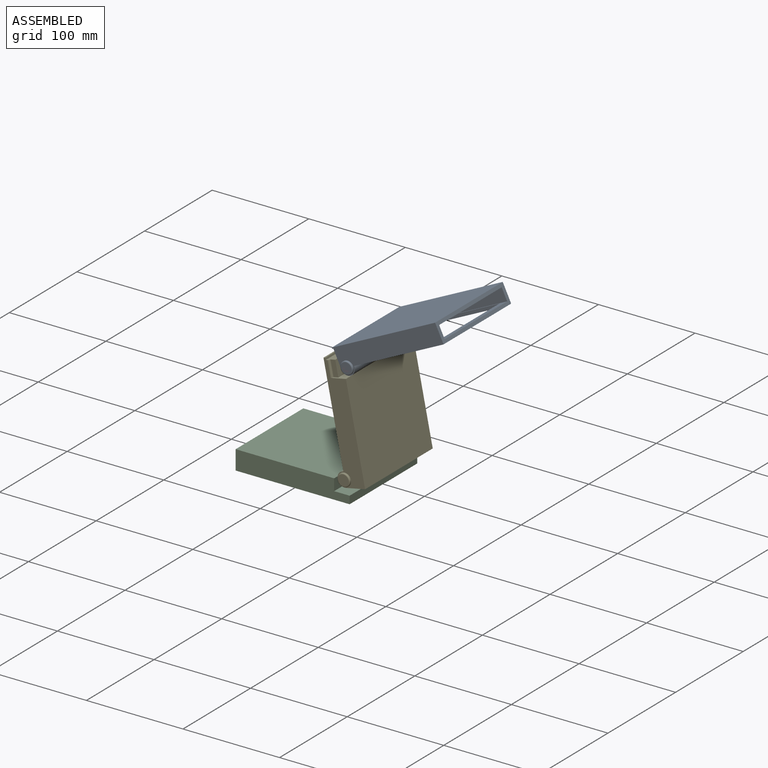
[diagram: assembled view]
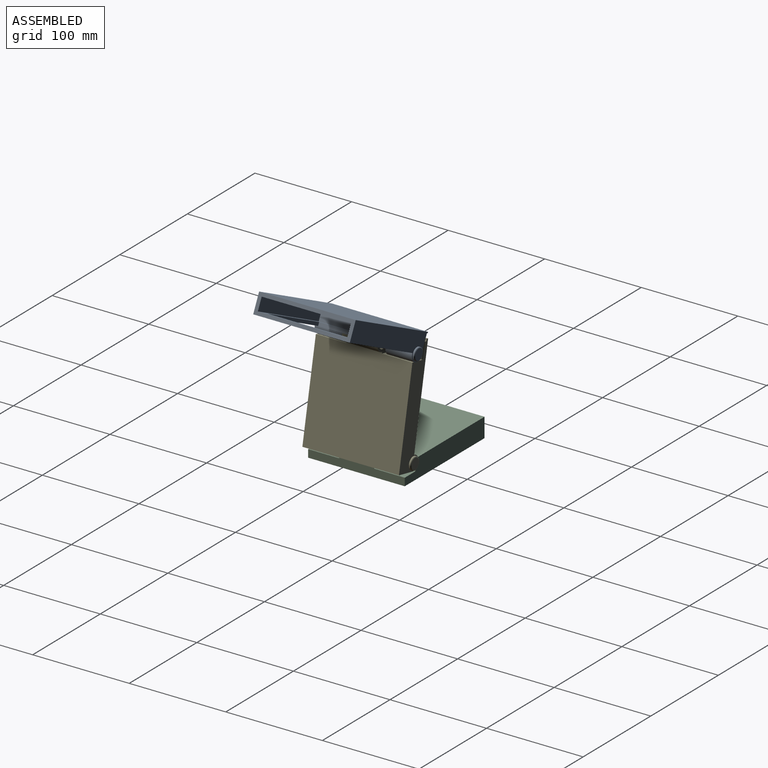
[diagram: assembled view, second angle]
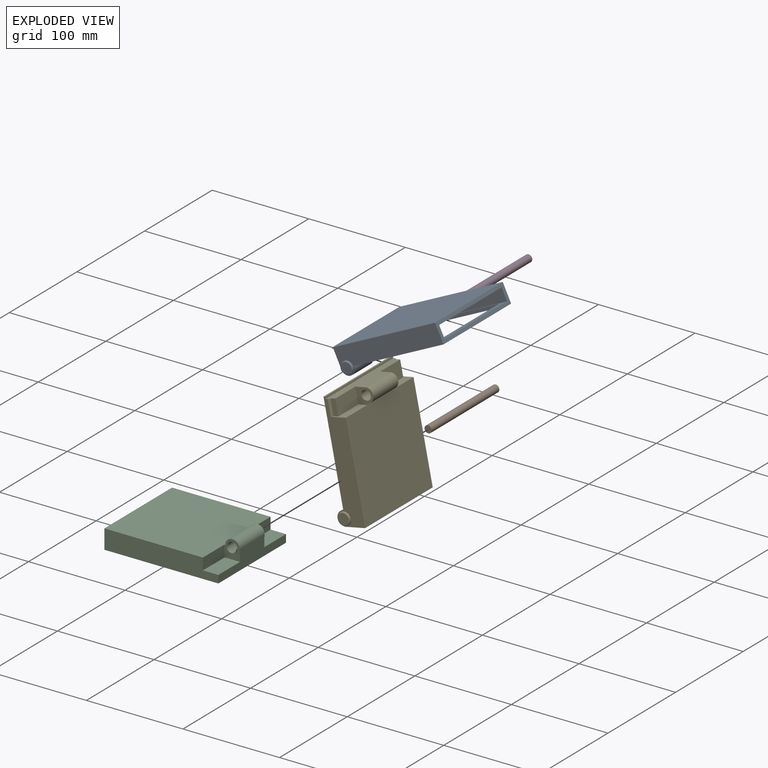
[diagram: exploded view]
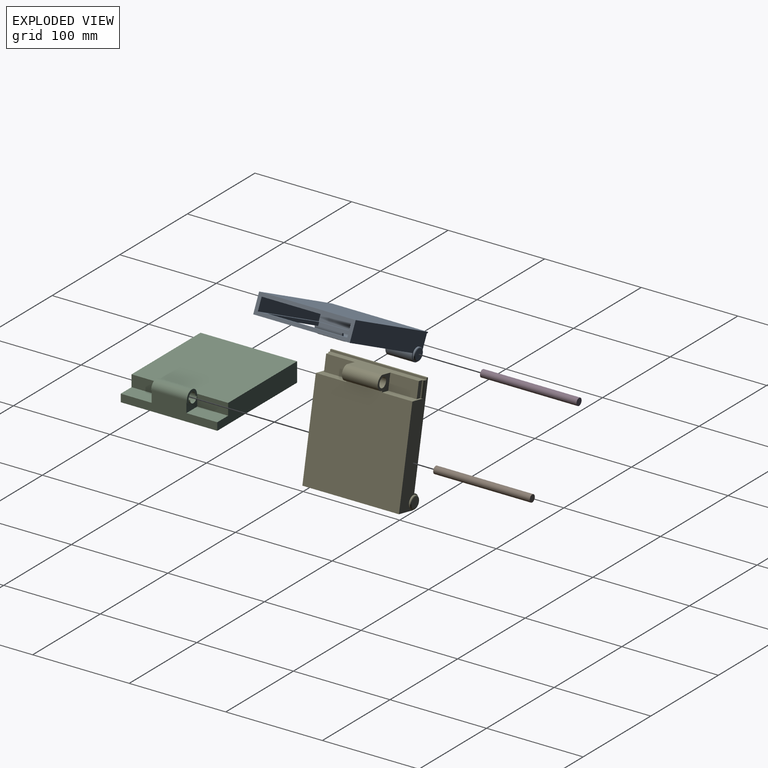
[diagram: exploded view, second angle]
ASSEMBLY  parts=5 mates=4
PART A: 37 faces, bbox 119x104x27.5 mm
  f0: cylinder r=7.5mm len=27.5mm, axis (0,1,0), area 589.4mm2, adj f5,f9,f13,f34
  f1: cylinder r=7.5mm len=14.7mm, axis (0,1,0), area 32.2mm2, adj f5,f7,f9,f34
  f2: cylinder r=7.5mm len=27.5mm, axis (0,1,0), area 589.4mm2, adj f6,f9,f14,f34
  f3: plane 42x15.7mm, normal (0,0,-1), area 659.4mm2, adj f7,f8,f15,f34
  f4: cylinder r=7.5mm len=14.7mm, axis (0,1,0), area 32.2mm2, adj f6,f8,f9,f34
  f5: plane 15x14.7mm, normal (0,1,0), area 97.3mm2, adj f0,f1,f23,f34
  f6: plane 15x14.7mm, normal (0,-1,0), area 97.3mm2, adj f2,f4,f25,f34
  f7: plane 15.7x15mm, normal (0,1,0), area 147.6mm2, adj f1,f3,f9,f15,f34
  f8: plane 15.7x15mm, normal (0,-1,0), area 147.6mm2, adj f3,f4,f9,f15,f34
  f9: plane 103x100mm, normal (0,0,-1), area 2776mm2, adj f0,f1,f2,f4,f7,f8,f11,f13
  f10: plane 100x92.5mm, normal (0,0,1), area 1768mm2, adj f11,f27,f28,f29,f30,f31,f32,f33
  f11: plane 100x20mm, normal (1,0,0), area 797.5mm2, adj f9,f10,f12,f13,f14,f26,f27,f28
  f12: plane 119x100mm, normal (0,0,1), area 11900mm2, adj f11,f13,f14,f36
  f13: plane 119x27.5mm, normal (0,-1,0), area 2310.7mm2, adj f0,f9,f11,f12,f18,f34,f35,f36
  f14: plane 119x27.5mm, normal (0,1,0), area 2310.7mm2, adj f2,f9,f11,f12,f17,f34,f35,f36
  f15: plane 42x15mm, normal (-1,0,0), area 630mm2, adj f3,f7,f8,f9
  f16: plane 11x11mm, normal (0,1,0), area 95mm2, adj f21
  f17: cylinder r=6.5mm len=13mm, axis (0,-1,0), area 40.8mm2, adj f14,f21
  f18: cylinder r=6.5mm len=13mm, axis (0,1,0), area 40.8mm2, adj f13,f20
  f19: plane 11x11mm, normal (0,-1,0), area 95mm2, adj f20
  f20: torus R=5.5mm, axis (0,-1,0), area 60.6mm2, adj f18,f19
  f21: torus R=5.5mm, axis (0,1,0), area 60.6mm2, adj f16,f17
  f22: plane 10x10mm, normal (0,1,0), area 78.5mm2, adj f23
  f23: cylinder r=5mm len=25.5mm, axis (0,1,0), area 801.1mm2, adj f5,f22
  f24: plane 10x10mm, normal (0,-1,0), area 78.5mm2, adj f25
  f25: cylinder r=5mm len=25.5mm, axis (0,1,0), area 801.1mm2, adj f6,f24
  f26: plane 100x92.5mm, normal (0,0,-1), area 9250mm2, adj f11,f27,f28,f29
  f27: plane 100x13mm, normal (0,1,0), area 1300mm2, adj f10,f11,f26,f29
  f28: plane 100x13mm, normal (0,-1,0), area 1300mm2, adj f10,f11,f26,f29
  f29: plane 92.5x13mm, normal (1,0,0), area 1202.5mm2, adj f10,f26,f27,f28
  f30: plane 86x3.47mm, normal (0,1,0), area 298.6mm2, adj f9,f10,f31,f33
  f31: plane 87x3.47mm, normal (1,0,0), area 302.1mm2, adj f9,f10,f30,f32
  f32: plane 86x3.47mm, normal (0,-1,0), area 298.6mm2, adj f9,f10,f31,f33
  f33: plane 87x3.47mm, normal (-1,0,0), area 302.1mm2, adj f9,f10,f30,f32
  f34: plane 100x20.94mm, normal (-1,0,0), area 1363mm2, adj f0,f1,f2,f3,f4,f5,f6,f7
  f35: plane 100x1.3mm, normal (0,0,-1), area 130mm2, adj f13,f14,f34,f36
  f36: plane 100x1.16mm, normal (-1,0,0), area 116.2mm2, adj f12,f13,f14,f35
PART B: 3 faces, bbox 7.5x100x7.5 mm
  f0: cylinder r=3.75mm len=100mm, axis (0,1,0), area 2356.2mm2, adj f1,f2
  f1: plane 7.5x7.5mm, normal (0,-1,0), area 44.2mm2, adj f0
  f2: plane 7.5x7.5mm, normal (0,1,0), area 44.2mm2, adj f0
PART C: 29 faces, bbox 118x100x27.5 mm
  f0: plane 118x100mm, normal (0,0,-1), area 11800mm2, adj f7,f10,f11,f28
  f1: plane 32x16mm, normal (0,0,1), area 512mm2, adj f5,f11,f12,f28
  f2: plane 32x16mm, normal (0,0,1), area 512mm2, adj f6,f10,f13,f28
  f3: plane 16x15.3mm, normal (0,-1,0), area 100mm2, adj f8,f9,f13,f14,f16,f21,f22,f28
  f4: plane 16x15.3mm, normal (0,1,0), area 100mm2, adj f8,f9,f12,f15,f16,f19,f20,f28
  f5: plane 16x11.7mm, normal (0,1,0), area 98.8mm2, adj f1,f12,f19,f20,f28
  f6: plane 16x11.7mm, normal (0,-1,0), area 98.8mm2, adj f2,f13,f21,f22,f28
  f7: plane 100x20mm, normal (-1,0,0), area 872mm2, adj f0,f8,f10,f11,f23,f24,f25,f26
  f8: plane 103x100mm, normal (0,0,1), area 10237mm2, adj f3,f4,f7,f9,f10,f11,f12,f13
  f9: cylinder r=7.5mm len=37mm, axis (0,-1,0), area 871.8mm2, adj f3,f4,f8,f28
  f10: plane 118x20mm, normal (0,-1,0), area 2168mm2, adj f0,f2,f7,f8,f13,f28
  f11: plane 118x20mm, normal (0,1,0), area 2168mm2, adj f0,f1,f7,f8,f12,f28
  f12: plane 32x12mm, normal (1,0,0), area 383.8mm2, adj f1,f4,f5,f8,f11,f19
  f13: plane 32x12mm, normal (1,0,0), area 383.9mm2, adj f2,f3,f6,f8,f10,f21
  f14: cylinder r=5mm len=10mm, axis (0,1,0), area 24mm2, adj f3,f16,f17
  f15: cylinder r=5mm len=10mm, axis (0,1,0), area 24mm2, adj f4,f16,f18
  f16: cylinder r=5mm len=40mm, axis (0,1,0), area 1208.6mm2, adj f3,f4,f14,f15,f17,f18
  f17: plane 10x5.15mm, normal (0,-1,0), area 3mm2, adj f14,f16
  f18: plane 10x5.15mm, normal (0,1,0), area 3mm2, adj f15,f16
  f19: plane 1x0.5mm, normal (0,0,-1), area 0.5mm2, adj f4,f5,f12,f20
  f20: cylinder r=7.5mm len=15mm, axis (0,1,0), area 11.8mm2, adj f4,f5,f19,f28
  f21: plane 1x0.5mm, normal (0,0,-1), area 0.5mm2, adj f3,f6,f13,f22
  f22: cylinder r=7.5mm len=15mm, axis (0,1,0), area 11.8mm2, adj f3,f6,f21,f28
  f23: plane 94x92.5mm, normal (0,0,-1), area 8695mm2, adj f7,f24,f26,f27
  f24: plane 92.5x12mm, normal (0,-1,0), area 1110mm2, adj f7,f23,f25,f27
  f25: plane 94x92.5mm, normal (0,0,1), area 8695mm2, adj f7,f24,f26,f27
  f26: plane 92.5x12mm, normal (0,1,0), area 1110mm2, adj f7,f23,f25,f27
  f27: plane 94x12mm, normal (-1,0,0), area 1128mm2, adj f23,f24,f25,f26
  f28: plane 100x20mm, normal (1,0,0), area 1232.3mm2, adj f0,f1,f2,f3,f4,f5,f6,f9
PART D: 3 faces, bbox 7.5x100x7.5 mm
  f0: cylinder r=3.75mm len=100mm, axis (0,1,0), area 2356.2mm2, adj f1,f2
  f1: plane 7.5x7.5mm, normal (0,-1,0), area 44.2mm2, adj f0
  f2: plane 7.5x7.5mm, normal (0,1,0), area 44.2mm2, adj f0
PART E: 41 faces, bbox 118x104x35.7 mm
  f0: plane 118x27.5mm, normal (0,-1,0), area 2015.7mm2, adj f2,f4,f13,f15,f18,f19,f22,f38
  f1: plane 118x27.5mm, normal (0,1,0), area 2015.7mm2, adj f2,f5,f12,f13,f14,f18,f21,f38
  f2: plane 101.33x100mm, normal (0,0,1), area 10043.9mm2, adj f0,f1,f3,f6,f7,f12,f19,f40
  f3: cylinder r=7.5mm len=37mm, axis (0,-1,0), area 819mm2, adj f2,f6,f7,f39
  f4: cylinder r=2mm len=16.09mm, axis (1,0,0), area 50.5mm2, adj f0,f8,f19,f39
  f5: cylinder r=2mm len=16.09mm, axis (-1,0,0), area 50.5mm2, adj f1,f10,f12,f39
  f6: plane 17.6x16.09mm, normal (0,1,0), area 170.9mm2, adj f2,f3,f11,f12,f32,f39
  f7: plane 17.6x16.09mm, normal (0,-1,0), area 170.9mm2, adj f2,f3,f9,f19,f32,f39
  f8: plane 16.09x5mm, normal (0,-1,0), area 80.4mm2, adj f4,f9,f19,f39
  f9: plane 29.5x16.09mm, normal (0,0,1), area 474.5mm2, adj f7,f8,f19,f39
  f10: plane 16.09x5mm, normal (0,1,0), area 80.4mm2, adj f5,f11,f12,f39
  f11: plane 29.5x16.09mm, normal (0,0,1), area 474.5mm2, adj f6,f10,f12,f39
  f12: plane 31.5x16.4mm, normal (-1,0,0), area 307mm2, adj f1,f2,f5,f6,f10,f11
  f13: plane 103x100mm, normal (0,0,-1), area 1977mm2, adj f0,f1,f14,f15,f16,f18,f26,f27
  f14: cylinder r=7.5mm len=28.5mm, axis (0,1,0), area 671.5mm2, adj f1,f13,f26,f40
  f15: cylinder r=7.5mm len=28.5mm, axis (0,1,0), area 671.5mm2, adj f0,f13,f27,f40
  f16: plane 43x15mm, normal (1,0,0), area 645mm2, adj f13,f17,f26,f27
  f17: plane 43x16mm, normal (0,0,-1), area 688mm2, adj f16,f26,f27,f40
  f18: plane 100x1.92mm, normal (-1,0,0), area 192.2mm2, adj f0,f1,f13,f38
  f19: plane 31.5x16.4mm, normal (-1,0,0), area 307mm2, adj f0,f2,f4,f7,f8,f9
  f20: plane 11x11mm, normal (0,1,0), area 95mm2, adj f25
  f21: cylinder r=6.5mm len=13mm, axis (0,-1,0), area 40.8mm2, adj f1,f25
  f22: cylinder r=6.5mm len=13mm, axis (0,1,0), area 40.8mm2, adj f0,f24
  f23: plane 11x11mm, normal (0,-1,0), area 95mm2, adj f24
  f24: torus R=5.5mm, axis (0,-1,0), area 60.6mm2, adj f22,f23
  f25: torus R=5.5mm, axis (0,1,0), area 60.6mm2, adj f20,f21
  f26: plane 22.5x16mm, normal (0,-1,0), area 249.8mm2, adj f13,f14,f16,f17,f29,f40
  f27: plane 22.5x16mm, normal (0,1,0), area 249.8mm2, adj f13,f15,f16,f17,f31,f40
  f28: plane 10x10mm, normal (0,-1,0), area 78.5mm2, adj f29
  f29: cylinder r=5mm len=26.5mm, axis (0,1,0), area 832.5mm2, adj f26,f28
  f30: plane 10x10mm, normal (0,1,0), area 78.5mm2, adj f31
  f31: cylinder r=5mm len=26.5mm, axis (0,1,0), area 832.5mm2, adj f27,f30
  f32: cylinder r=5mm len=37mm, axis (0,-1,0), area 1162.4mm2, adj f6,f7
  f33: plane 92x3.3mm, normal (0,1,0), area 303.6mm2, adj f13,f34,f36,f37
  f34: plane 90x3.3mm, normal (1,0,0), area 297mm2, adj f13,f33,f35,f37
  f35: plane 92x3.3mm, normal (0,-1,0), area 303.6mm2, adj f13,f34,f36,f37
  f36: plane 90x3.3mm, normal (-1,0,0), area 297mm2, adj f13,f33,f35,f37
  f37: plane 92x90mm, normal (0,0,-1), area 8280mm2, adj f33,f34,f35,f36
  f38: plane 100x2mm, normal (0,0,1), area 200mm2, adj f0,f1,f18,f39
  f39: plane 100x20.88mm, normal (-1,0,0), area 1297.4mm2, adj f0,f1,f3,f4,f5,f6,f7,f8
  f40: plane 100x20mm, normal (1,0,0), area 1355mm2, adj f0,f1,f2,f14,f15,f17,f26,f27
PLACE A rot(axis=(0,-1,0),25.9deg) t=(139.69,7.5,88.78)mm
PLACE B rot(axis=(0,1,0),131.9deg) t=(118.93,5.5,18.94)mm
PLACE C t=(34.48,0,-17.34)mm fixed
PLACE D rot(axis=(0,-1,0),160.9deg) t=(43.76,5.5,120.86)mm
PLACE E rot(axis=(0,1,0),78.5deg) t=(75.21,3.5,31.11)mm
MATE pin_slot D.f0 <-> A.f0  axis (0,-1,0) through (85.08,-94.5,84.95)mm
MATE pin_slot B.f0 <-> E.f14  axis (0,1,0) through (84.98,5.5,-18.44)mm
MATE revolute E.f14 <-> C.f22  axis (0,1,0) through (84.98,-68,-18.44)mm
MATE revolute E.f3 <-> A.f0  axis (0,-1,0) through (85.08,-65,84.95)mm
